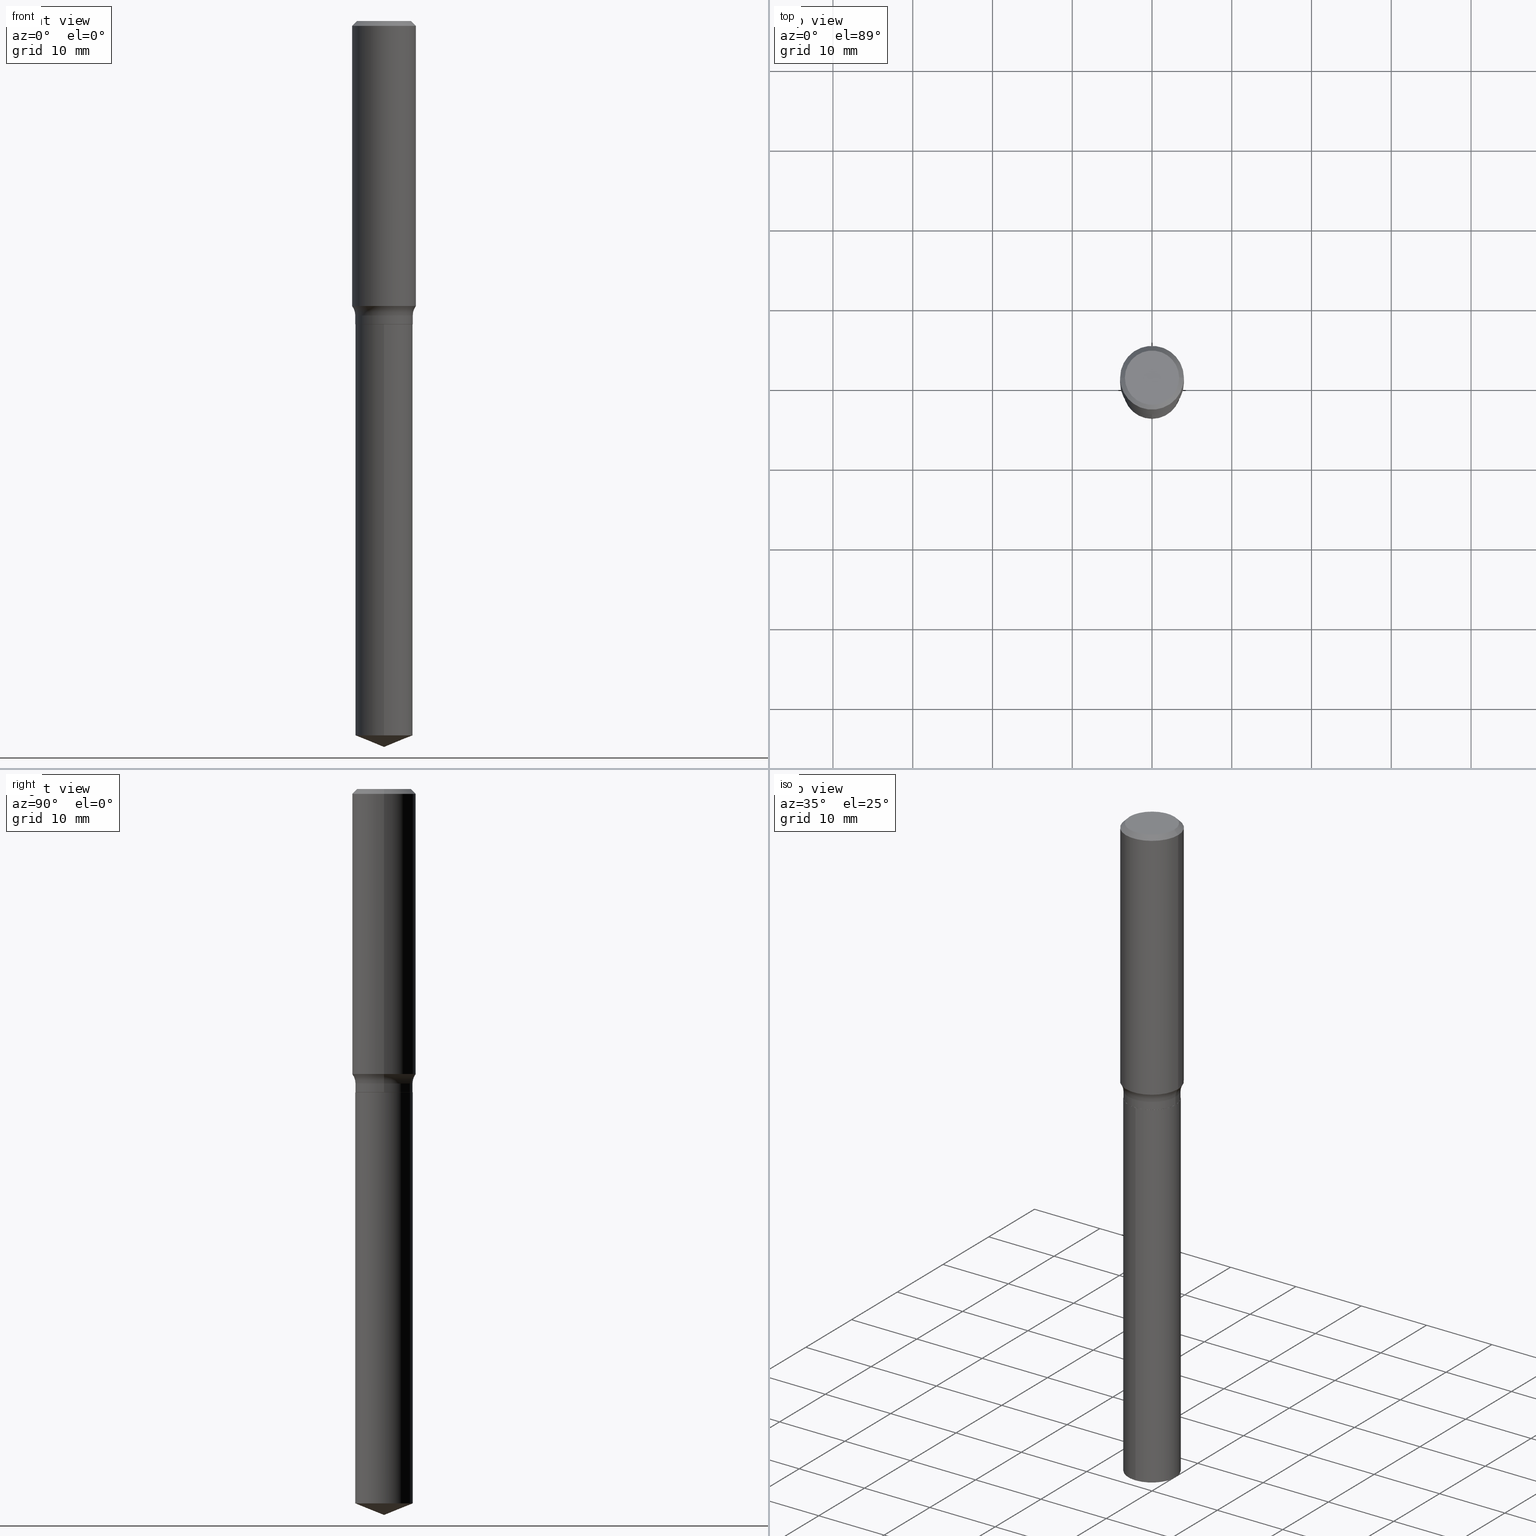
[diagram: canonical four-view strip — front | top / right | iso, engineering-drawing reading convention]
A machine part, canonical four-view strip (front | top / right | iso — engineering-drawing reading convention). The complete STEP part file that produces these views, byte-faithful:
ISO-10303-21;
HEADER;
FILE_DESCRIPTION (( 'STEP AP203' ),
    '1' );
FILE_NAME ('69265.STEP',
    '2024-04-19T17:34:43',
    ( '' ),
    ( '' ),
    'SwSTEP 2.0',
    'SolidWorks 2023',
    '' );
FILE_SCHEMA (( 'CONFIG_CONTROL_DESIGN' ));
ENDSEC;

DATA;
#1 = ADVANCED_BREP_SHAPE_REPRESENTATION ( '69265', ( #34, #204, #336 ), #405 ) ;
#2 = CARTESIAN_POINT ( 'NONE',  ( 3.659399521575439863E-29, -5.224652675444884140E-15, -1.496400000000000396 ) ) ;
#3 = DESIGN_CONTEXT ( 'detailed design', #89, 'design' ) ;
#4 = PERSON_AND_ORGANIZATION ( #158, #124 ) ;
#5 = EDGE_LOOP ( 'NONE', ( #55, #210 ) ) ;
#6 = PLANE ( 'NONE',  #205 ) ;
#7 = ADVANCED_FACE ( 'NONE', ( #99 ), #253, .F. ) ;
#8 = DIRECTION ( 'NONE',  ( 1.000000000000000000, -6.982962677686266711E-15, 0.000000000000000000 ) ) ;
#9 = CARTESIAN_POINT ( 'NONE',  ( 3.439553501887494675E-29, -4.910770824562959789E-15, -1.406500664898319819 ) ) ;
#10 = AXIS2_PLACEMENT_3D ( 'NONE', #278, #50, #8 ) ;
#11 = CC_DESIGN_APPROVAL ( #391, ( #237 ) ) ;
#12 = ORIENTED_EDGE ( 'NONE', *, *, #317, .T. ) ;
#13 = EDGE_CURVE ( 'NONE', #273, #422, #384, .T. ) ;
#14 = CARTESIAN_POINT ( 'NONE',  ( 8.762031590209278139E-29, -1.251009670165531742E-14, -3.583000000000000185 ) ) ;
#15 = ORIENTED_EDGE ( 'NONE', *, *, #13, .T. ) ;
#16 = CYLINDRICAL_SURFACE ( 'NONE', #279, 0.1575000000000000844 ) ;
#17 = VERTEX_POINT ( 'NONE', #213 ) ;
#18 = AXIS2_PLACEMENT_3D ( 'NONE', #32, #334, #347 ) ;
#19 = FACE_OUTER_BOUND ( 'NONE', #196, .T. ) ;
#20 = VECTOR ( 'NONE', #35, 39.37007874015748143 ) ;
#21 = AXIS2_PLACEMENT_3D ( 'NONE', #47, #102, #305 ) ;
#22 = CARTESIAN_POINT ( 'NONE',  ( 0.1412499999999999867, -6.210996153668069155E-15, -1.496400000000000396 ) ) ;
#23 =( CONVERSION_BASED_UNIT ( 'INCH', #367 ) LENGTH_UNIT ( ) NAMED_UNIT ( #473 ) );
#24 = ORIENTED_EDGE ( 'NONE', *, *, #256, .T. ) ;
#25 = CARTESIAN_POINT ( 'NONE',  ( 8.762031590209278139E-29, -1.251009670165531742E-14, -3.583000000000000185 ) ) ;
#26 = AXIS2_PLACEMENT_3D ( 'NONE', #255, #332, #414 ) ;
#27 = EDGE_CURVE ( 'NONE', #415, #68, #178, .T. ) ;
#28 = LOCAL_TIME ( 13, 34, 43.00000000000000000, #459 ) ;
#29 = ORIENTED_EDGE ( 'NONE', *, *, #62, .T. ) ;
#30 = CARTESIAN_POINT ( 'NONE',  ( 0.1575000000000001954, -6.010587446298547269E-15, -1.406500664898319819 ) ) ;
#31 = DIRECTION ( 'NONE',  ( -6.982962677686265133E-15, -1.000000000000000000, 3.498761904101797187E-15 ) ) ;
#32 = CARTESIAN_POINT ( 'NONE',  ( 0.000000000000000000, 0.000000000000000000, 0.000000000000000000 ) ) ;
#33 = APPROVAL_DATE_TIME ( #348, #391 ) ;
#34 = MANIFOLD_SOLID_BREP ( 'Body-Move/Copy2[1]', #396 ) ;
#35 = DIRECTION ( 'NONE',  ( 0.7071067811865451302, -7.319954787623248157E-15, -0.7071067811865499042 ) ) ;
#36 = EDGE_LOOP ( 'NONE', ( #455, #87, #458 ) ) ;
#37 = DATE_TIME_ROLE ( 'creation_date' ) ;
#38 = DIRECTION ( 'NONE',  ( 1.000000000000000000, -6.982962677686265922E-15, 0.000000000000000000 ) ) ;
#39 = DIRECTION ( 'NONE',  ( 6.982962677686265922E-15, 1.000000000000000000, -3.491514569259089389E-15 ) ) ;
#40 = DATE_AND_TIME ( #117, #183 ) ;
#41 = PRODUCT_DEFINITION_FORMATION_WITH_SPECIFIED_SOURCE ( 'ANY', '', #441, .NOT_KNOWN. ) ;
#42 = FACE_OUTER_BOUND ( 'NONE', #318, .T. ) ;
#43 = DIRECTION ( 'NONE',  ( -2.445468806185136877E-29, 3.491481338843145188E-15, 1.000000000000000000 ) ) ;
#44 = DIRECTION ( 'NONE',  ( -2.445468806185136597E-29, 3.491481338843145583E-15, 1.000000000000000000 ) ) ;
#45 = ORIENTED_EDGE ( 'NONE', *, *, #436, .T. ) ;
#46 = ADVANCED_FACE ( 'NONE', ( #339 ), #154, .T. ) ;
#47 = CARTESIAN_POINT ( 'NONE',  ( 5.777420054612421104E-31, -8.248624663016984002E-17, -0.02362500000000014588 ) ) ;
#48 = CALENDAR_DATE ( 2024, 19, 4 ) ;
#49 = DIRECTION ( 'NONE',  ( 2.445468806185136597E-29, -3.491481338843145583E-15, -1.000000000000000000 ) ) ;
#50 = DIRECTION ( 'NONE',  ( -2.445468806185136597E-29, 3.491481338843145583E-15, 1.000000000000000000 ) ) ;
#51 = DIRECTION ( 'NONE',  ( -2.445468806185136597E-29, 3.491481338843145583E-15, 1.000000000000000000 ) ) ;
#52 = CARTESIAN_POINT ( 'NONE',  ( -9.898349595619915374E-16, -0.1417500000000052052, -1.496399999999999730 ) ) ;
#53 = ORIENTED_EDGE ( 'NONE', *, *, #243, .T. ) ;
#54 = CIRCLE ( 'NONE', #366, 0.1575000000000001954 ) ;
#55 = ORIENTED_EDGE ( 'NONE', *, *, #440, .T. ) ;
#56 = ADVANCED_FACE ( 'NONE', ( #463 ), #69, .T. ) ;
#57 = CARTESIAN_POINT ( 'NONE',  ( 3.554488909790095658E-29, -5.074868126008511245E-15, -1.453500000000000014 ) ) ;
#58 = EDGE_CURVE ( 'NONE', #17, #301, #201, .T. ) ;
#59 = DIRECTION ( 'NONE',  ( 1.000000000000000000, -6.982962677686267499E-15, 4.876176775795936353E-29 ) ) ;
#60 = AXIS2_PLACEMENT_3D ( 'NONE', #486, #49, #84 ) ;
#61 = CIRCLE ( 'NONE', #489, 0.1575000000000000011 ) ;
#62 = EDGE_CURVE ( 'NONE', #114, #373, #216, .T. ) ;
#63 = EDGE_CURVE ( 'NONE', #418, #208, #236, .T. ) ;
#64 = CARTESIAN_POINT ( 'NONE',  ( 1.007194327939978407E-15, 0.1417499999999947691, -1.496400000000000841 ) ) ;
#65 = AXIS2_PLACEMENT_3D ( 'NONE', #150, #71, #143 ) ;
#66 = CARTESIAN_POINT ( 'NONE',  ( -0.1417499999999999871, -4.141693202452044624E-15, -1.453500000000000014 ) ) ;
#67 = ADVANCED_FACE ( 'NONE', ( #265 ), #292, .F. ) ;
#68 = VERTEX_POINT ( 'NONE', #448 ) ;
#69 = CONICAL_SURFACE ( 'NONE', #207, 97.44436430772927338, 1.186823891356147964 ) ;
#70 = CARTESIAN_POINT ( 'NONE',  ( 0.1412499999999999867, -6.210996153668069155E-15, -1.496400000000000396 ) ) ;
#71 = DIRECTION ( 'NONE',  ( -2.445468806185136597E-29, 3.491481338843145583E-15, 1.000000000000000000 ) ) ;
#72 = VERTEX_POINT ( 'NONE', #209 ) ;
#73 = DIRECTION ( 'NONE',  ( -2.445468806185136597E-29, 3.491481338843145583E-15, 1.000000000000000000 ) ) ;
#74 = ORIENTED_EDGE ( 'NONE', *, *, #119, .F. ) ;
#75 = DIRECTION ( 'NONE',  ( 1.000000000000000000, -6.982962677686265922E-15, 0.000000000000000000 ) ) ;
#76 = ORIENTED_EDGE ( 'NONE', *, *, #491, .F. ) ;
#77 = DIRECTION ( 'NONE',  ( -6.982962677686265133E-15, -1.000000000000000000, 3.854459250319948630E-15 ) ) ;
#78 = DIRECTION ( 'NONE',  ( -2.445445601509706497E-29, 3.491514569259089389E-15, 1.000000000000000000 ) ) ;
#79 = CARTESIAN_POINT ( 'NONE',  ( 1.007194327940028105E-15, 0.1417499999999947413, -1.496400000000000841 ) ) ;
#80 = DIRECTION ( 'NONE',  ( 1.000000000000000000, -6.982962677686263555E-15, 0.000000000000000000 ) ) ;
#81 = MECHANICAL_CONTEXT ( 'NONE', #407, 'mechanical' ) ;
#82 = VECTOR ( 'NONE', #147, 39.37007874015748143 ) ;
#83 = CARTESIAN_POINT ( 'NONE',  ( -8.751531957252333368E-28, 1.249511565384764858E-13, 35.78707874015748303 ) ) ;
#84 = DIRECTION ( 'NONE',  ( -1.000000000000000000, 6.982962677686265922E-15, 0.000000000000000000 ) ) ;
#85 = DIRECTION ( 'NONE',  ( 1.000000000000000000, 0.000000000000000000, 0.000000000000000000 ) ) ;
#86 = DIRECTION ( 'NONE',  ( 1.000000000000000000, -6.982962677686264344E-15, 4.883557194083112340E-29 ) ) ;
#87 = ORIENTED_EDGE ( 'NONE', *, *, #187, .T. ) ;
#88 = FACE_OUTER_BOUND ( 'NONE', #340, .T. ) ;
#89 = APPLICATION_CONTEXT ( 'configuration controlled 3d designs of mechanical parts and assemblies' ) ;
#90 = VECTOR ( 'NONE', #156, 39.37007874015748143 ) ;
#91 = ORIENTED_EDGE ( 'NONE', *, *, #378, .F. ) ;
#92 = DIRECTION ( 'NONE',  ( -2.445468806185136877E-29, 3.491481338843145188E-15, 1.000000000000000000 ) ) ;
#93 = VECTOR ( 'NONE', #320, 39.37007874015748143 ) ;
#94 = AXIS2_PLACEMENT_3D ( 'NONE', #83, #258, #226 ) ;
#95 = DIRECTION ( 'NONE',  ( -6.982962677686265133E-15, -1.000000000000000000, 3.854459250319948630E-15 ) ) ;
#96 = CIRCLE ( 'NONE', #386, 0.1338749999999999940 ) ;
#97 =( NAMED_UNIT ( * ) SI_UNIT ( $, .STERADIAN. ) SOLID_ANGLE_UNIT ( ) );
#98 = CARTESIAN_POINT ( 'NONE',  ( 8.622013889450241900E-29, -1.231008543107536459E-14, -3.525729282487866989 ) ) ;
#99 = FACE_OUTER_BOUND ( 'NONE', #5, .T. ) ;
#100 = VECTOR ( 'NONE', #168, 39.37007874015748143 ) ;
#101 = AXIS2_PLACEMENT_3D ( 'NONE', #490, #51, #299 ) ;
#102 = DIRECTION ( 'NONE',  ( -2.445468806185136597E-29, 3.491481338843145583E-15, 1.000000000000000000 ) ) ;
#103 = ORIENTED_EDGE ( 'NONE', *, *, #300, .F. ) ;
#104 = DIRECTION ( 'NONE',  ( 0.000000000000000000, 0.000000000000000000, 1.000000000000000000 ) ) ;
#105 = DIRECTION ( 'NONE',  ( -2.445468806185136597E-29, 3.491481338843145583E-15, 1.000000000000000000 ) ) ;
#106 = CYLINDRICAL_SURFACE ( 'NONE', #240, 0.1417499999999999871 ) ;
#107 = EDGE_CURVE ( 'NONE', #422, #68, #328, .T. ) ;
#108 = FACE_OUTER_BOUND ( 'NONE', #266, .T. ) ;
#109 = ORIENTED_EDGE ( 'NONE', *, *, #378, .T. ) ;
#110 = PERSON_AND_ORGANIZATION ( #158, #124 ) ;
#111 = CARTESIAN_POINT ( 'NONE',  ( 3.659399521575438742E-29, -5.224652675444883351E-15, -1.496400000000000174 ) ) ;
#112 = DIRECTION ( 'NONE',  ( -6.982962677686266711E-15, -1.000000000000000000, 3.491481338843145583E-15 ) ) ;
#113 = CARTESIAN_POINT ( 'NONE',  ( 3.554488909790095658E-29, -5.074868126008511245E-15, -1.453500000000000014 ) ) ;
#114 = VERTEX_POINT ( 'NONE', #14 ) ;
#115 = LINE ( 'NONE', #423, #90 ) ;
#116 = APPROVAL_ROLE ( '' ) ;
#117 = CALENDAR_DATE ( 2024, 19, 4 ) ;
#118 = CARTESIAN_POINT ( 'NONE',  ( 3.659399521575438742E-29, -5.224652675444883351E-15, -1.496400000000000174 ) ) ;
#119 = EDGE_CURVE ( 'NONE', #444, #371, #357, .T. ) ;
#120 = PRODUCT_DEFINITION ( 'UNKNOWN', '', #41, #3 ) ;
#121 = DIRECTION ( 'NONE',  ( 1.000000000000000000, -6.982962677686263555E-15, 0.000000000000000000 ) ) ;
#122 = ORIENTED_EDGE ( 'NONE', *, *, #317, .F. ) ;
#123 = AXIS2_PLACEMENT_3D ( 'NONE', #380, #343, #80 ) ;
#124 = ORGANIZATION ( 'UNSPECIFIED', 'UNSPECIFIED', '' ) ;
#125 = FACE_OUTER_BOUND ( 'NONE', #337, .T. ) ;
#126 = EDGE_CURVE ( 'NONE', #72, #198, #442, .T. ) ;
#127 = DIRECTION ( 'NONE',  ( -2.445445601509706497E-29, 3.491514569259089389E-15, 1.000000000000000000 ) ) ;
#128 = VECTOR ( 'NONE', #288, 39.37007874015748854 ) ;
#129 = CONICAL_SURFACE ( 'NONE', #94, 97.44436430772927338, 1.186823891356147964 ) ;
#130 = LINE ( 'NONE', #314, #100 ) ;
#131 = VECTOR ( 'NONE', #242, 39.37007874015748143 ) ;
#132 = VECTOR ( 'NONE', #460, 39.37007874015748143 ) ;
#133 = DIRECTION ( 'NONE',  ( -2.445468806185136597E-29, 3.491481338843145583E-15, 1.000000000000000000 ) ) ;
#134 = CARTESIAN_POINT ( 'NONE',  ( 8.762101646129704419E-29, -1.250999724966648130E-14, -3.583000000000000185 ) ) ;
#135 = ORIENTED_EDGE ( 'NONE', *, *, #440, .F. ) ;
#136 = CARTESIAN_POINT ( 'NONE',  ( -8.751531957252333368E-28, 1.249511565384764858E-13, 35.78707874015748303 ) ) ;
#137 = LINE ( 'NONE', #487, #132 ) ;
#138 = EDGE_CURVE ( 'NONE', #208, #418, #365, .T. ) ;
#139 = APPROVAL_STATUS ( 'not_yet_approved' ) ;
#140 = AXIS2_PLACEMENT_3D ( 'NONE', #409, #381, #39 ) ;
#141 = ORIENTED_EDGE ( 'NONE', *, *, #421, .T. ) ;
#142 = CONICAL_SURFACE ( 'NONE', #264, 0.1575000000000000011, 0.7853981633974449483 ) ;
#143 = DIRECTION ( 'NONE',  ( 1.000000000000000000, -6.982962677686266711E-15, 0.000000000000000000 ) ) ;
#144 = FACE_OUTER_BOUND ( 'NONE', #377, .T. ) ;
#145 = ORIENTED_EDGE ( 'NONE', *, *, #199, .F. ) ;
#146 = PERSON_AND_ORGANIZATION ( #158, #124 ) ;
#147 = DIRECTION ( 'NONE',  ( -0.7071067811865451302, 2.468850131082231817E-15, -0.7071067811865499042 ) ) ;
#148 = EDGE_LOOP ( 'NONE', ( #179, #12, #212, #103 ) ) ;
#149 = CARTESIAN_POINT ( 'NONE',  ( 5.777420054612421104E-31, -8.248624663016984002E-17, -0.02362500000000014588 ) ) ;
#150 = CARTESIAN_POINT ( 'NONE',  ( 3.658176787172346501E-29, -5.222906934775461847E-15, -1.495900000000000230 ) ) ;
#151 = EDGE_LOOP ( 'NONE', ( #122, #370, #257, #160 ) ) ;
#152 = CYLINDRICAL_SURFACE ( 'NONE', #427, 0.1417499999999999871 ) ;
#153 = CARTESIAN_POINT ( 'NONE',  ( 3.659399521575438742E-29, -5.224652675444883351E-15, -1.496400000000000174 ) ) ;
#154 = CONICAL_SURFACE ( 'NONE', #26, 0.1412499999999999867, 0.7853981633972775267 ) ;
#155 = ORIENTED_EDGE ( 'NONE', *, *, #436, .F. ) ;
#156 = DIRECTION ( 'NONE',  ( -0.7071067811864267805, 7.493145998869918709E-15, 0.7071067811866682540 ) ) ;
#157 = COORDINATED_UNIVERSAL_TIME_OFFSET ( 5, 0, .BEHIND. ) ;
#158 = PERSON ( 'UNSPECIFIED', 'UNSPECIFIED', 'UNSPECIFIED', ('UNSPECIFIED'), ('UNSPECIFIED'), ('UNSPECIFIED') ) ;
#159 = DIRECTION ( 'NONE',  ( -2.445445601509706497E-29, 3.491514569259089389E-15, 1.000000000000000000 ) ) ;
#160 = ORIENTED_EDGE ( 'NONE', *, *, #63, .T. ) ;
#161 = CYLINDRICAL_SURFACE ( 'NONE', #166, 0.1417499999999999871 ) ;
#162 = AXIS2_PLACEMENT_3D ( 'NONE', #113, #174, #86 ) ;
#163 = APPROVAL_PERSON_ORGANIZATION ( #466, #391, #116 ) ;
#164 = DIRECTION ( 'NONE',  ( -2.445468806185136597E-29, 3.491481338843145583E-15, 1.000000000000000000 ) ) ;
#165 = ADVANCED_FACE ( 'NONE', ( #125 ), #161, .T. ) ;
#166 = AXIS2_PLACEMENT_3D ( 'NONE', #153, #397, #194 ) ;
#167 = ADVANCED_FACE ( 'NONE', ( #399 ), #16, .T. ) ;
#168 = DIRECTION ( 'NONE',  ( -2.445468806185136877E-29, 3.491481338843145188E-15, 1.000000000000000000 ) ) ;
#169 = ADVANCED_FACE ( 'NONE', ( #200 ), #352, .F. ) ;
#170 = AXIS2_PLACEMENT_3D ( 'NONE', #394, #309, #121 ) ;
#171 = VERTEX_POINT ( 'NONE', #307 ) ;
#172 =( NAMED_UNIT ( * ) PLANE_ANGLE_UNIT ( ) SI_UNIT ( $, .RADIAN. ) );
#173 = LINE ( 'NONE', #387, #218 ) ;
#174 = DIRECTION ( 'NONE',  ( -2.445468806185136597E-29, 3.491481338843145583E-15, 1.000000000000000000 ) ) ;
#175 = ADVANCED_FACE ( 'NONE', ( #19 ), #232, .T. ) ;
#176 = FACE_OUTER_BOUND ( 'NONE', #231, .T. ) ;
#177 = ORIENTED_EDGE ( 'NONE', *, *, #250, .T. ) ;
#178 = LINE ( 'NONE', #484, #82 ) ;
#179 = ORIENTED_EDGE ( 'NONE', *, *, #356, .F. ) ;
#180 = DIRECTION ( 'NONE',  ( -1.000000000000000000, 6.982962677686265922E-15, -4.876176775795935793E-29 ) ) ;
#181 = CIRCLE ( 'NONE', #315, 0.1417499999999999871 ) ;
#182 = CARTESIAN_POINT ( 'NONE',  ( 3.439553501887494675E-29, -4.910770824562959789E-15, -1.406500664898319819 ) ) ;
#183 = LOCAL_TIME ( 13, 34, 43.00000000000000000, #468 ) ;
#184 = PERSON_AND_ORGANIZATION ( #158, #124 ) ;
#185 = ORIENTED_EDGE ( 'NONE', *, *, #235, .F. ) ;
#186 = CARTESIAN_POINT ( 'NONE',  ( 5.777420054612421104E-31, -8.248624663016984002E-17, -0.02362500000000014588 ) ) ;
#187 = EDGE_CURVE ( 'NONE', #114, #444, #406, .T. ) ;
#188 = PERSON_AND_ORGANIZATION ( #158, #124 ) ;
#189 = DIRECTION ( 'NONE',  ( -2.445468806185136597E-29, 3.491481338843145583E-15, 1.000000000000000000 ) ) ;
#190 = FACE_OUTER_BOUND ( 'NONE', #246, .T. ) ;
#191 = ORIENTED_EDGE ( 'NONE', *, *, #63, .F. ) ;
#192 = DIRECTION ( 'NONE',  ( -2.445468806185136597E-29, 3.491481338843145583E-15, 1.000000000000000000 ) ) ;
#193 = DATE_AND_TIME ( #223, #229 ) ;
#194 = DIRECTION ( 'NONE',  ( -6.982962677686265133E-15, -1.000000000000000000, 3.854459250319948630E-15 ) ) ;
#195 = AXIS2_PLACEMENT_3D ( 'NONE', #283, #285, #446 ) ;
#196 = EDGE_LOOP ( 'NONE', ( #53, #310, #135, #74 ) ) ;
#197 = CIRCLE ( 'NONE', #362, 0.1412499999999999867 ) ;
#198 = VERTEX_POINT ( 'NONE', #22 ) ;
#199 = EDGE_CURVE ( 'NONE', #273, #398, #130, .T. ) ;
#200 = FACE_OUTER_BOUND ( 'NONE', #151, .T. ) ;
#201 = CIRCLE ( 'NONE', #65, 0.1417499999999999871 ) ;
#202 = EDGE_CURVE ( 'NONE', #373, #413, #410, .T. ) ;
#203 = CIRCLE ( 'NONE', #263, 0.07800000000000002764 ) ;
#204 = MANIFOLD_SOLID_BREP ( 'Body-Move/Copy2[2]', #322 ) ;
#205 = AXIS2_PLACEMENT_3D ( 'NONE', #469, #379, #180 ) ;
#206 = ORIENTED_EDGE ( 'NONE', *, *, #119, .T. ) ;
#207 = AXIS2_PLACEMENT_3D ( 'NONE', #136, #78, #31 ) ;
#208 = VERTEX_POINT ( 'NONE', #66 ) ;
#209 = CARTESIAN_POINT ( 'NONE',  ( -0.1412499999999999867, -4.218361834009631521E-15, -1.496400000000000396 ) ) ;
#210 = ORIENTED_EDGE ( 'NONE', *, *, #477, .T. ) ;
#211 = CARTESIAN_POINT ( 'NONE',  ( 0.1417499999999999871, -6.064703085570540056E-15, -1.453500000000000014 ) ) ;
#212 = ORIENTED_EDGE ( 'NONE', *, *, #138, .T. ) ;
#213 = CARTESIAN_POINT ( 'NONE',  ( 0.1417499999999999871, -6.212741894337490659E-15, -1.495900000000000230 ) ) ;
#214 = CARTESIAN_POINT ( 'NONE',  ( -1.002970424325032604E-46, 1.431975951230895391E-32, 4.101342130344482109E-18 ) ) ;
#215 = PERSON_AND_ORGANIZATION ( #158, #124 ) ;
#216 = LINE ( 'NONE', #134, #128 ) ;
#217 = DIRECTION ( 'NONE',  ( -2.445468806185136597E-29, 3.491481338843145583E-15, 1.000000000000000000 ) ) ;
#218 = VECTOR ( 'NONE', #43, 39.37007874015748143 ) ;
#219 = APPROVAL_ROLE ( '' ) ;
#220 = CARTESIAN_POINT ( 'NONE',  ( 0.000000000000000000, 0.000000000000000000, 0.000000000000000000 ) ) ;
#221 = DATE_AND_TIME ( #241, #313 ) ;
#222 = CARTESIAN_POINT ( 'NONE',  ( -0.2197500000000000009, -3.513450464175691080E-15, -1.453500000000000014 ) ) ;
#223 = CALENDAR_DATE ( 2024, 19, 4 ) ;
#224 = EDGE_LOOP ( 'NONE', ( #244, #185, #358, #449 ) ) ;
#225 = ADVANCED_FACE ( 'NONE', ( #476 ), #282, .F. ) ;
#226 = DIRECTION ( 'NONE',  ( -6.982962677686265133E-15, -1.000000000000000000, 3.498761904101797187E-15 ) ) ;
#227 = AXIS2_PLACEMENT_3D ( 'NONE', #372, #127, #95 ) ;
#228 = DIRECTION ( 'NONE',  ( -2.445468806185136597E-29, 3.491481338843145583E-15, 1.000000000000000000 ) ) ;
#229 = LOCAL_TIME ( 13, 34, 43.00000000000000000, #157 ) ;
#230 = APPROVAL ( #382, 'UNSPECIFIED' ) ;
#231 = EDGE_LOOP ( 'NONE', ( #330, #45 ) ) ;
#232 = CYLINDRICAL_SURFACE ( 'NONE', #316, 0.1417499999999999871 ) ;
#233 = ORIENTED_EDGE ( 'NONE', *, *, #202, .F. ) ;
#234 = ORIENTED_EDGE ( 'NONE', *, *, #434, .T. ) ;
#235 = EDGE_CURVE ( 'NONE', #415, #171, #426, .T. ) ;
#236 = CIRCLE ( 'NONE', #335, 0.1417499999999999871 ) ;
#237 = SECURITY_CLASSIFICATION ( '', '', #297 ) ;
#238 = DIRECTION ( 'NONE',  ( -6.982962677686265133E-15, -1.000000000000000000, 3.854459250319948630E-15 ) ) ;
#239 = CIRCLE ( 'NONE', #401, 0.07800000000000002764 ) ;
#240 = AXIS2_PLACEMENT_3D ( 'NONE', #220, #217, #368 ) ;
#241 = CALENDAR_DATE ( 2024, 19, 4 ) ;
#242 = DIRECTION ( 'NONE',  ( -6.474490251793185729E-15, -0.9271838545667875353, 0.3746065934159116817 ) ) ;
#243 = EDGE_CURVE ( 'NONE', #444, #373, #181, .T. ) ;
#244 = ORIENTED_EDGE ( 'NONE', *, *, #256, .F. ) ;
#245 = DIRECTION ( 'NONE',  ( -2.445445601509706497E-29, 3.491514569259089389E-15, 1.000000000000000000 ) ) ;
#246 = EDGE_LOOP ( 'NONE', ( #155, #24, #308, #433 ) ) ;
#247 = CC_DESIGN_DATE_AND_TIME_ASSIGNMENT ( #221, #417, ( #237 ) ) ;
#248 = CARTESIAN_POINT ( 'NONE',  ( -0.1417499999999999871, -4.141693202452044624E-15, -1.495900000000000230 ) ) ;
#249 = ORIENTED_EDGE ( 'NONE', *, *, #289, .F. ) ;
#250 = EDGE_CURVE ( 'NONE', #373, #444, #452, .T. ) ;
#251 = EDGE_LOOP ( 'NONE', ( #15, #471, #447, #145 ) ) ;
#252 = DIRECTION ( 'NONE',  ( -2.445468806185136597E-29, 3.491481338843145583E-15, 1.000000000000000000 ) ) ;
#253 = PLANE ( 'NONE',  #140 ) ;
#254 = APPROVAL_DATE_TIME ( #306, #450 ) ;
#255 = CARTESIAN_POINT ( 'NONE',  ( 3.659399521575439863E-29, -5.224652675444884140E-15, -1.496400000000000396 ) ) ;
#256 = EDGE_CURVE ( 'NONE', #171, #398, #403, .T. ) ;
#257 = ORIENTED_EDGE ( 'NONE', *, *, #300, .T. ) ;
#258 = DIRECTION ( 'NONE',  ( -2.445445601509706497E-29, 3.491514569259089389E-15, 1.000000000000000000 ) ) ;
#259 = SHAPE_DEFINITION_REPRESENTATION ( #364, #1 ) ;
#260 = PERSON_AND_ORGANIZATION_ROLE ( 'creator' ) ;
#261 = CARTESIAN_POINT ( 'NONE',  ( 3.554488909790095658E-29, -5.074868126008511245E-15, -1.453500000000000014 ) ) ;
#262 = DIRECTION ( 'NONE',  ( 1.000000000000000000, -6.982962677686266711E-15, 4.876170806578254279E-29 ) ) ;
#263 = AXIS2_PLACEMENT_3D ( 'NONE', #461, #112, #324 ) ;
#264 = AXIS2_PLACEMENT_3D ( 'NONE', #149, #267, #383 ) ;
#265 = FACE_OUTER_BOUND ( 'NONE', #148, .T. ) ;
#266 = EDGE_LOOP ( 'NONE', ( #141, #109, #321, #76 ) ) ;
#267 = DIRECTION ( 'NONE',  ( 2.445468806185136597E-29, -3.491481338843145583E-15, -1.000000000000000000 ) ) ;
#268 = COORDINATED_UNIVERSAL_TIME_OFFSET ( 5, 0, .BEHIND. ) ;
#269 = APPROVAL_DATE_TIME ( #40, #230 ) ;
#270 = ORIENTED_EDGE ( 'NONE', *, *, #477, .F. ) ;
#271 = DIRECTION ( 'NONE',  ( -2.445445601509706497E-29, 3.491514569259089389E-15, 1.000000000000000000 ) ) ;
#272 = PRODUCT_RELATED_PRODUCT_CATEGORY ( 'detail', '', ( #441 ) ) ;
#273 = VERTEX_POINT ( 'NONE', #30 ) ;
#274 = CONICAL_SURFACE ( 'NONE', #123, 0.1412499999999999867, 0.7853981633972775267 ) ;
#275 = VECTOR ( 'NONE', #445, 39.37007874015748143 ) ;
#276 = ORIENTED_EDGE ( 'NONE', *, *, #138, .F. ) ;
#277 = ADVANCED_FACE ( 'NONE', ( #108 ), #274, .T. ) ;
#278 = CARTESIAN_POINT ( 'NONE',  ( 3.554488909790095658E-29, -5.074868126008511245E-15, -1.453500000000000014 ) ) ;
#279 = AXIS2_PLACEMENT_3D ( 'NONE', #354, #164, #59 ) ;
#280 = CC_DESIGN_PERSON_AND_ORGANIZATION_ASSIGNMENT ( #146, #344, ( #41 ) ) ;
#281 =( LENGTH_UNIT ( ) NAMED_UNIT ( * ) SI_UNIT ( $, .METRE. ) );
#282 = PLANE ( 'NONE',  #195 ) ;
#283 = CARTESIAN_POINT ( 'NONE',  ( 1.638449867910776433E-29, -8.118767604803614284E-15, -1.496400000000000396 ) ) ;
#284 = CONICAL_SURFACE ( 'NONE', #60, 0.1575000000000000011, 0.7853981633974449483 ) ;
#285 = DIRECTION ( 'NONE',  ( -2.438088387897960049E-29, 3.491481338843145188E-15, 1.000000000000000000 ) ) ;
#286 = CC_DESIGN_PERSON_AND_ORGANIZATION_ASSIGNMENT ( #110, #388, ( #237 ) ) ;
#287 = ORIENTED_EDGE ( 'NONE', *, *, #199, .T. ) ;
#288 = DIRECTION ( 'NONE',  ( 6.588037525764799179E-15, 0.9271838545667900888, 0.3746065934159051869 ) ) ;
#289 = EDGE_CURVE ( 'NONE', #301, #208, #173, .T. ) ;
#290 = ORIENTED_EDGE ( 'NONE', *, *, #467, .T. ) ;
#291 = CARTESIAN_POINT ( 'NONE',  ( 1.007194327940028105E-15, 0.1417499999999876914, -3.525729282487867877 ) ) ;
#292 = TOROIDAL_SURFACE ( 'NONE', #162, 0.2197500000000000009, 0.07800000000000002764 ) ;
#293 = CIRCLE ( 'NONE', #465, 0.1417499999999999871 ) ;
#294 = ORIENTED_EDGE ( 'NONE', *, *, #491, .T. ) ;
#295 = CYLINDRICAL_SURFACE ( 'NONE', #18, 0.1575000000000000844 ) ;
#296 = ORIENTED_EDGE ( 'NONE', *, *, #126, .F. ) ;
#297 = SECURITY_CLASSIFICATION_LEVEL ( 'unclassified' ) ;
#298 = ORIENTED_EDGE ( 'NONE', *, *, #421, .F. ) ;
#299 = DIRECTION ( 'NONE',  ( 1.000000000000000000, -6.982962677686266711E-15, 0.000000000000000000 ) ) ;
#300 = EDGE_CURVE ( 'NONE', #273, #418, #203, .T. ) ;
#301 = VERTEX_POINT ( 'NONE', #248 ) ;
#302 = CARTESIAN_POINT ( 'NONE',  ( 0.000000000000000000, 0.000000000000000000, 0.000000000000000000 ) ) ;
#303 = AXIS2_PLACEMENT_3D ( 'NONE', #57, #228, #361 ) ;
#304 = APPROVAL_ROLE ( '' ) ;
#305 = DIRECTION ( 'NONE',  ( 1.000000000000000000, -6.982962677686265922E-15, 0.000000000000000000 ) ) ;
#306 = DATE_AND_TIME ( #331, #28 ) ;
#307 = CARTESIAN_POINT ( 'NONE',  ( 0.1338749999999999940, -1.040731925365424925E-15, 4.101342130351390035E-18 ) ) ;
#308 = ORIENTED_EDGE ( 'NONE', *, *, #408, .T. ) ;
#309 = DIRECTION ( 'NONE',  ( -2.445468806185136597E-29, 3.491481338843145583E-15, 1.000000000000000000 ) ) ;
#310 = ORIENTED_EDGE ( 'NONE', *, *, #202, .T. ) ;
#311 = ADVANCED_FACE ( 'NONE', ( #326 ), #284, .T. ) ;
#312 = CARTESIAN_POINT ( 'NONE',  ( -0.1575000000000000844, 1.119104808822158392E-15, -7.747322767151481189E-30 ) ) ;
#313 = LOCAL_TIME ( 13, 34, 43.00000000000000000, #451 ) ;
#314 = CARTESIAN_POINT ( 'NONE',  ( 0.1575000000000000844, -1.099816621735587677E-15, 7.679978421878603638E-30 ) ) ;
#315 = AXIS2_PLACEMENT_3D ( 'NONE', #98, #245, #412 ) ;
#316 = AXIS2_PLACEMENT_3D ( 'NONE', #360, #435, #238 ) ;
#317 = EDGE_CURVE ( 'NONE', #422, #208, #239, .T. ) ;
#318 = EDGE_LOOP ( 'NONE', ( #355, #29, #346 ) ) ;
#319 = ADVANCED_FACE ( 'NONE', ( #190 ), #142, .T. ) ;
#320 = DIRECTION ( 'NONE',  ( -2.445445601509706497E-29, 3.491514569259089389E-15, 1.000000000000000000 ) ) ;
#321 = ORIENTED_EDGE ( 'NONE', *, *, #58, .F. ) ;
#322 = CLOSED_SHELL ( 'NONE', ( #277, #319, #167, #67, #359, #485, #169, #363, #311, #385, #225, #46 ) ) ;
#323 = LOCAL_TIME ( 13, 34, 43.00000000000000000, #268 ) ;
#324 = DIRECTION ( 'NONE',  ( 1.000000000000000000, -6.982962677686268288E-15, 0.000000000000000000 ) ) ;
#325 = EDGE_LOOP ( 'NONE', ( #429, #488, #191, #420 ) ) ;
#326 = FACE_OUTER_BOUND ( 'NONE', #224, .T. ) ;
#327 = EDGE_LOOP ( 'NONE', ( #298, #296 ) ) ;
#328 = LINE ( 'NONE', #312, #404 ) ;
#329 = CARTESIAN_POINT ( 'NONE',  ( -9.898349595619418392E-16, -0.1417500000000123106, -3.525729282487866545 ) ) ;
#330 = ORIENTED_EDGE ( 'NONE', *, *, #235, .T. ) ;
#331 = CALENDAR_DATE ( 2024, 19, 4 ) ;
#332 = DIRECTION ( 'NONE',  ( -2.445468806185136597E-29, 3.491481338843145583E-15, 1.000000000000000000 ) ) ;
#333 = ORIENTED_EDGE ( 'NONE', *, *, #107, .F. ) ;
#334 = DIRECTION ( 'NONE',  ( -2.445468806185136597E-29, 3.491481338843145583E-15, 1.000000000000000000 ) ) ;
#335 = AXIS2_PLACEMENT_3D ( 'NONE', #261, #44, #345 ) ;
#336 = AXIS2_PLACEMENT_3D ( 'NONE', #456, #104, #85 ) ;
#337 = EDGE_LOOP ( 'NONE', ( #233, #177, #206, #270 ) ) ;
#338 = PERSON_AND_ORGANIZATION ( #158, #124 ) ;
#339 = FACE_OUTER_BOUND ( 'NONE', #389, .T. ) ;
#340 = EDGE_LOOP ( 'NONE', ( #333, #395, #287, #411 ) ) ;
#341 = DIRECTION ( 'NONE',  ( 1.000000000000000000, -6.982962677686263555E-15, 0.000000000000000000 ) ) ;
#342 = EDGE_CURVE ( 'NONE', #68, #398, #431, .T. ) ;
#343 = DIRECTION ( 'NONE',  ( -2.445468806185136597E-29, 3.491481338843145583E-15, 1.000000000000000000 ) ) ;
#344 = PERSON_AND_ORGANIZATION_ROLE ( 'design_supplier' ) ;
#345 = DIRECTION ( 'NONE',  ( 1.000000000000000000, -6.982962677686266711E-15, 0.000000000000000000 ) ) ;
#346 = ORIENTED_EDGE ( 'NONE', *, *, #243, .F. ) ;
#347 = DIRECTION ( 'NONE',  ( 1.000000000000000000, -6.982962677686267499E-15, 4.876176775795936353E-29 ) ) ;
#348 = DATE_AND_TIME ( #48, #323 ) ;
#349 = DIRECTION ( 'NONE',  ( -1.000000000000000000, 7.105427357601001859E-15, 0.000000000000000000 ) ) ;
#350 = CC_DESIGN_PERSON_AND_ORGANIZATION_ASSIGNMENT ( #4, #462, ( #441 ) ) ;
#351 = DIRECTION ( 'NONE',  ( 1.000000000000000000, -6.982962677686266711E-15, 4.876176775795936353E-29 ) ) ;
#352 = TOROIDAL_SURFACE ( 'NONE', #303, 0.2197500000000000009, 0.07800000000000002764 ) ;
#353 = APPROVAL_STATUS ( 'not_yet_approved' ) ;
#354 = CARTESIAN_POINT ( 'NONE',  ( 0.000000000000000000, 0.000000000000000000, 0.000000000000000000 ) ) ;
#355 = ORIENTED_EDGE ( 'NONE', *, *, #187, .F. ) ;
#356 = EDGE_CURVE ( 'NONE', #422, #273, #54, .T. ) ;
#357 = LINE ( 'NONE', #52, #437 ) ;
#358 = ORIENTED_EDGE ( 'NONE', *, *, #27, .T. ) ;
#359 = ADVANCED_FACE ( 'NONE', ( #390 ), #152, .T. ) ;
#360 = CARTESIAN_POINT ( 'NONE',  ( 3.659399521575438742E-29, -5.224652675444883351E-15, -1.496400000000000174 ) ) ;
#361 = DIRECTION ( 'NONE',  ( 1.000000000000000000, -6.982962677686264344E-15, 4.883557194083112340E-29 ) ) ;
#362 = AXIS2_PLACEMENT_3D ( 'NONE', #2, #376, #341 ) ;
#363 = ADVANCED_FACE ( 'NONE', ( #88 ), #295, .T. ) ;
#364 = PRODUCT_DEFINITION_SHAPE ( 'NONE', 'NONE',  #120 ) ;
#365 = CIRCLE ( 'NONE', #10, 0.1417499999999999871 ) ;
#366 = AXIS2_PLACEMENT_3D ( 'NONE', #9, #252, #425 ) ;
#367 = LENGTH_MEASURE_WITH_UNIT ( LENGTH_MEASURE( 0.02539999999999999897 ), #281 );
#368 = DIRECTION ( 'NONE',  ( 1.000000000000000000, -6.982962677686266711E-15, 4.876176775795936353E-29 ) ) ;
#369 = CC_DESIGN_PERSON_AND_ORGANIZATION_ASSIGNMENT ( #188, #260, ( #120 ) ) ;
#370 = ORIENTED_EDGE ( 'NONE', *, *, #13, .F. ) ;
#371 = VERTEX_POINT ( 'NONE', #464 ) ;
#372 = CARTESIAN_POINT ( 'NONE',  ( 8.622013889450241900E-29, -1.231008543107536459E-14, -3.525729282487866989 ) ) ;
#373 = VERTEX_POINT ( 'NONE', #291 ) ;
#374 = AXIS2_PLACEMENT_3D ( 'NONE', #182, #105, #75 ) ;
#375 = CIRCLE ( 'NONE', #416, 0.1417499999999999871 ) ;
#376 = DIRECTION ( 'NONE',  ( -2.445468806185136597E-29, 3.491481338843145583E-15, 1.000000000000000000 ) ) ;
#377 = EDGE_LOOP ( 'NONE', ( #249, #234, #290, #276 ) ) ;
#378 = EDGE_CURVE ( 'NONE', #72, #301, #115, .T. ) ;
#379 = DIRECTION ( 'NONE',  ( 2.438088387897960049E-29, -3.491481338843145188E-15, -1.000000000000000000 ) ) ;
#380 = CARTESIAN_POINT ( 'NONE',  ( 3.659399521575439863E-29, -5.224652675444884140E-15, -1.496400000000000396 ) ) ;
#381 = DIRECTION ( 'NONE',  ( 2.445445601509706217E-29, -3.491514569259089389E-15, -1.000000000000000000 ) ) ;
#382 = APPROVAL_STATUS ( 'not_yet_approved' ) ;
#383 = DIRECTION ( 'NONE',  ( -1.000000000000000000, 6.982962677686265922E-15, 0.000000000000000000 ) ) ;
#384 = CIRCLE ( 'NONE', #374, 0.1575000000000001954 ) ;
#385 = ADVANCED_FACE ( 'NONE', ( #176 ), #6, .F. ) ;
#386 = AXIS2_PLACEMENT_3D ( 'NONE', #214, #192, #262 ) ;
#387 = CARTESIAN_POINT ( 'NONE',  ( -0.1417499999999999871, 1.007194327939941922E-15, -6.972590490436327745E-30 ) ) ;
#388 = PERSON_AND_ORGANIZATION_ROLE ( 'classification_officer' ) ;
#389 = EDGE_LOOP ( 'NONE', ( #91, #478, #294, #432 ) ) ;
#390 = FACE_OUTER_BOUND ( 'NONE', #325, .T. ) ;
#391 = APPROVAL ( #139, 'UNSPECIFIED' ) ;
#392 = DIRECTION ( 'NONE',  ( 7.105427357601001859E-15, 1.000000000000000000, -3.491481338843145583E-15 ) ) ;
#393 = CARTESIAN_POINT ( 'NONE',  ( -0.1575000000000001954, -3.791666015740800607E-15, -1.406500664898319819 ) ) ;
#394 = CARTESIAN_POINT ( 'NONE',  ( 3.659399521575439863E-29, -5.224652675444884140E-15, -1.496400000000000396 ) ) ;
#395 = ORIENTED_EDGE ( 'NONE', *, *, #356, .T. ) ;
#396 = CLOSED_SHELL ( 'NONE', ( #175, #400, #56, #165, #7 ) ) ;
#397 = DIRECTION ( 'NONE',  ( -2.445445601509706497E-29, 3.491514569259089389E-15, 1.000000000000000000 ) ) ;
#398 = VERTEX_POINT ( 'NONE', #430 ) ;
#399 = FACE_OUTER_BOUND ( 'NONE', #251, .T. ) ;
#400 = ADVANCED_FACE ( 'NONE', ( #42 ), #129, .T. ) ;
#401 = AXIS2_PLACEMENT_3D ( 'NONE', #222, #392, #349 ) ;
#402 = APPROVAL_PERSON_ORGANIZATION ( #215, #230, #304 ) ;
#403 = LINE ( 'NONE', #475, #20 ) ;
#404 = VECTOR ( 'NONE', #92, 39.37007874015748143 ) ;
#405 =( GEOMETRIC_REPRESENTATION_CONTEXT ( 3 ) GLOBAL_UNCERTAINTY_ASSIGNED_CONTEXT ( ( #482 ) ) GLOBAL_UNIT_ASSIGNED_CONTEXT ( ( #23, #172, #97 ) ) REPRESENTATION_CONTEXT ( 'NONE', 'WORKASPACE' ) );
#406 = LINE ( 'NONE', #25, #131 ) ;
#407 = APPLICATION_CONTEXT ( 'configuration controlled 3d designs of mechanical parts and assemblies' ) ;
#408 = EDGE_CURVE ( 'NONE', #398, #68, #61, .T. ) ;
#409 = CARTESIAN_POINT ( 'NONE',  ( 3.659399521575438742E-29, -5.224652675444883351E-15, -1.496400000000000174 ) ) ;
#410 = LINE ( 'NONE', #64, #93 ) ;
#411 = ORIENTED_EDGE ( 'NONE', *, *, #342, .F. ) ;
#412 = DIRECTION ( 'NONE',  ( -6.982962677686265133E-15, -1.000000000000000000, 3.854459250319948630E-15 ) ) ;
#413 = VERTEX_POINT ( 'NONE', #79 ) ;
#414 = DIRECTION ( 'NONE',  ( 1.000000000000000000, -6.982962677686263555E-15, 0.000000000000000000 ) ) ;
#415 = VERTEX_POINT ( 'NONE', #457 ) ;
#416 = AXIS2_PLACEMENT_3D ( 'NONE', #118, #271, #454 ) ;
#417 = DATE_TIME_ROLE ( 'classification_date' ) ;
#418 = VERTEX_POINT ( 'NONE', #211 ) ;
#419 = DIRECTION ( 'NONE',  ( -2.445445601509706497E-29, 3.491514569259089389E-15, 1.000000000000000000 ) ) ;
#420 = ORIENTED_EDGE ( 'NONE', *, *, #467, .F. ) ;
#421 = EDGE_CURVE ( 'NONE', #198, #72, #197, .T. ) ;
#422 = VERTEX_POINT ( 'NONE', #393 ) ;
#423 = CARTESIAN_POINT ( 'NONE',  ( -0.1412499999999999867, -4.221011061183743511E-15, -1.496400000000000396 ) ) ;
#424 = APPLICATION_PROTOCOL_DEFINITION ( 'international standard', 'config_control_design', 1994, #89 ) ;
#425 = DIRECTION ( 'NONE',  ( 1.000000000000000000, -6.982962677686265922E-15, 0.000000000000000000 ) ) ;
#426 = CIRCLE ( 'NONE', #479, 0.1338749999999999940 ) ;
#427 = AXIS2_PLACEMENT_3D ( 'NONE', #302, #189, #351 ) ;
#428 = APPLICATION_PROTOCOL_DEFINITION ( 'international standard', 'config_control_design', 1994, #407 ) ;
#429 = ORIENTED_EDGE ( 'NONE', *, *, #58, .T. ) ;
#430 = CARTESIAN_POINT ( 'NONE',  ( 0.1575000000000000011, -1.182302868365756679E-15, -0.02362500000000014588 ) ) ;
#431 = CIRCLE ( 'NONE', #21, 0.1575000000000000011 ) ;
#432 = ORIENTED_EDGE ( 'NONE', *, *, #434, .F. ) ;
#433 = ORIENTED_EDGE ( 'NONE', *, *, #27, .F. ) ;
#434 = EDGE_CURVE ( 'NONE', #301, #17, #453, .T. ) ;
#435 = DIRECTION ( 'NONE',  ( -2.445445601509706497E-29, 3.491514569259089389E-15, 1.000000000000000000 ) ) ;
#436 = EDGE_CURVE ( 'NONE', #171, #415, #96, .T. ) ;
#437 = VECTOR ( 'NONE', #159, 39.37007874015748143 ) ;
#438 = CC_DESIGN_SECURITY_CLASSIFICATION ( #237, ( #41 ) ) ;
#439 = DIRECTION ( 'NONE',  ( 1.000000000000000000, -6.982962677686266711E-15, 4.876170806578254279E-29 ) ) ;
#440 = EDGE_CURVE ( 'NONE', #371, #413, #375, .T. ) ;
#441 = PRODUCT ( '69265', '69265', '', ( #81 ) ) ;
#442 = CIRCLE ( 'NONE', #170, 0.1412499999999999867 ) ;
#443 = CC_DESIGN_APPROVAL ( #450, ( #41 ) ) ;
#444 = VERTEX_POINT ( 'NONE', #329 ) ;
#445 = DIRECTION ( 'NONE',  ( 0.7071067811864267805, -2.468850131080992517E-15, 0.7071067811866682540 ) ) ;
#446 = DIRECTION ( 'NONE',  ( 1.000000000000000000, -6.982962677686265922E-15, 4.876176775795935793E-29 ) ) ;
#447 = ORIENTED_EDGE ( 'NONE', *, *, #408, .F. ) ;
#448 = CARTESIAN_POINT ( 'NONE',  ( -0.1575000000000000011, -1.377523726774406200E-15, -0.02362500000000014588 ) ) ;
#449 = ORIENTED_EDGE ( 'NONE', *, *, #342, .T. ) ;
#450 = APPROVAL ( #353, 'UNSPECIFIED' ) ;
#451 = COORDINATED_UNIVERSAL_TIME_OFFSET ( 5, 0, .BEHIND. ) ;
#452 = CIRCLE ( 'NONE', #227, 0.1417499999999999871 ) ;
#453 = CIRCLE ( 'NONE', #101, 0.1417499999999999871 ) ;
#454 = DIRECTION ( 'NONE',  ( -6.982962677686265133E-15, -1.000000000000000000, 3.854459250319948630E-15 ) ) ;
#455 = ORIENTED_EDGE ( 'NONE', *, *, #62, .F. ) ;
#456 = CARTESIAN_POINT ( 'NONE',  ( 0.000000000000000000, 0.000000000000000000, 0.000000000000000000 ) ) ;
#457 = CARTESIAN_POINT ( 'NONE',  ( -0.1338749999999999940, 9.760872517903331886E-16, 4.101342130337800673E-18 ) ) ;
#458 = ORIENTED_EDGE ( 'NONE', *, *, #250, .F. ) ;
#459 = COORDINATED_UNIVERSAL_TIME_OFFSET ( 5, 0, .BEHIND. ) ;
#460 = DIRECTION ( 'NONE',  ( -2.445468806185136877E-29, 3.491481338843145188E-15, 1.000000000000000000 ) ) ;
#461 = CARTESIAN_POINT ( 'NONE',  ( 0.2197500000000000009, -6.609374174430068891E-15, -1.453500000000000014 ) ) ;
#462 = PERSON_AND_ORGANIZATION_ROLE ( 'design_owner' ) ;
#463 = FACE_OUTER_BOUND ( 'NONE', #36, .T. ) ;
#464 = CARTESIAN_POINT ( 'NONE',  ( -9.898349595619915374E-16, -0.1417500000000052052, -1.496399999999999730 ) ) ;
#465 = AXIS2_PLACEMENT_3D ( 'NONE', #111, #419, #77 ) ;
#466 = PERSON_AND_ORGANIZATION ( #158, #124 ) ;
#467 = EDGE_CURVE ( 'NONE', #17, #418, #137, .T. ) ;
#468 = COORDINATED_UNIVERSAL_TIME_OFFSET ( 5, 0, .BEHIND. ) ;
#469 = CARTESIAN_POINT ( 'NONE',  ( -5.014852121625163022E-47, 7.159879756154476955E-33, 2.050671065172241055E-18 ) ) ;
#470 = CC_DESIGN_PERSON_AND_ORGANIZATION_ASSIGNMENT ( #338, #492, ( #41 ) ) ;
#471 = ORIENTED_EDGE ( 'NONE', *, *, #107, .T. ) ;
#472 = CC_DESIGN_APPROVAL ( #230, ( #120 ) ) ;
#473 = DIMENSIONAL_EXPONENTS ( 1.000000000000000000, 0.000000000000000000, 0.000000000000000000, 0.000000000000000000, 0.000000000000000000, 0.000000000000000000, 0.000000000000000000 ) ;
#474 = CC_DESIGN_DATE_AND_TIME_ASSIGNMENT ( #193, #37, ( #120 ) ) ;
#475 = CARTESIAN_POINT ( 'NONE',  ( 0.1575000000000000011, -1.163014681279185964E-15, -0.02362500000000014588 ) ) ;
#476 = FACE_OUTER_BOUND ( 'NONE', #327, .T. ) ;
#477 = EDGE_CURVE ( 'NONE', #413, #371, #293, .T. ) ;
#478 = ORIENTED_EDGE ( 'NONE', *, *, #126, .T. ) ;
#479 = AXIS2_PLACEMENT_3D ( 'NONE', #481, #133, #439 ) ;
#480 = APPROVAL_PERSON_ORGANIZATION ( #184, #450, #219 ) ;
#481 = CARTESIAN_POINT ( 'NONE',  ( -1.002970424325032604E-46, 1.431975951230895391E-32, 4.101342130344482109E-18 ) ) ;
#482 = UNCERTAINTY_MEASURE_WITH_UNIT (LENGTH_MEASURE( 1.000000000000000082E-05 ), #23, 'distance_accuracy_value', 'NONE');
#483 = LINE ( 'NONE', #70, #275 ) ;
#484 = CARTESIAN_POINT ( 'NONE',  ( -0.1575000000000000011, 1.017330375105417098E-15, -0.02362500000000014588 ) ) ;
#485 = ADVANCED_FACE ( 'NONE', ( #144 ), #106, .T. ) ;
#486 = CARTESIAN_POINT ( 'NONE',  ( 5.777420054612421104E-31, -8.248624663016984002E-17, -0.02362500000000014588 ) ) ;
#487 = CARTESIAN_POINT ( 'NONE',  ( 0.1417499999999999871, -9.898349595620282194E-16, 6.911980579690738790E-30 ) ) ;
#488 = ORIENTED_EDGE ( 'NONE', *, *, #289, .T. ) ;
#489 = AXIS2_PLACEMENT_3D ( 'NONE', #186, #73, #38 ) ;
#490 = CARTESIAN_POINT ( 'NONE',  ( 3.658176787172346501E-29, -5.222906934775461847E-15, -1.495900000000000230 ) ) ;
#491 = EDGE_CURVE ( 'NONE', #198, #17, #483, .T. ) ;
#492 = PERSON_AND_ORGANIZATION_ROLE ( 'creator' ) ;
ENDSEC;
END-ISO-10303-21;
